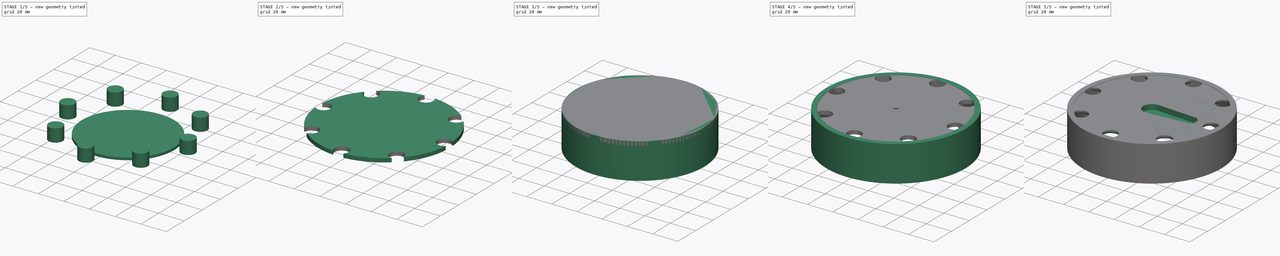
[diagram: build sequence overview — one tinted view per stage of 5, left to right]
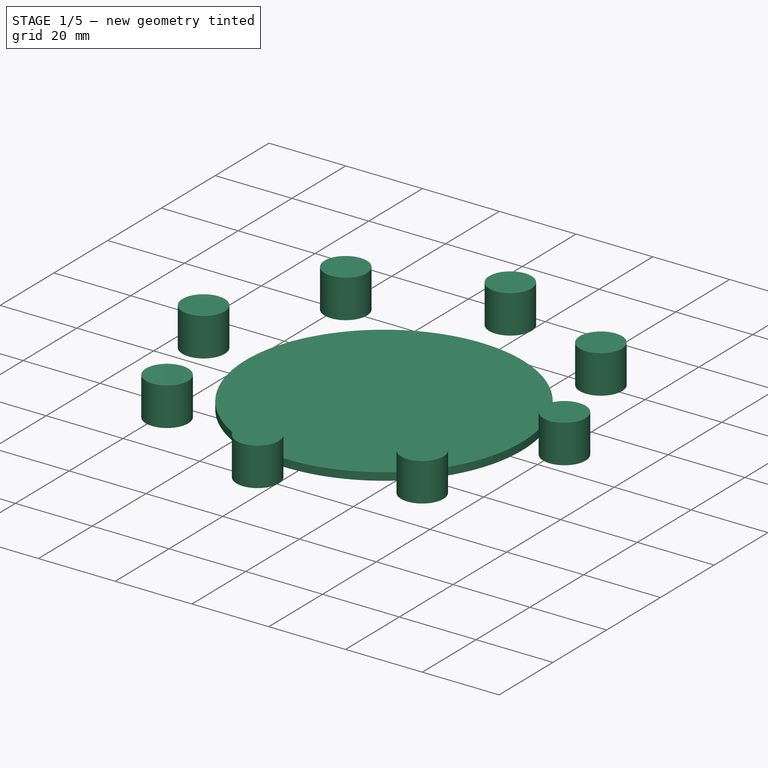
[diagram: stage 1 of 5 — iso view after this stage's code; geometry added in this stage tinted green]
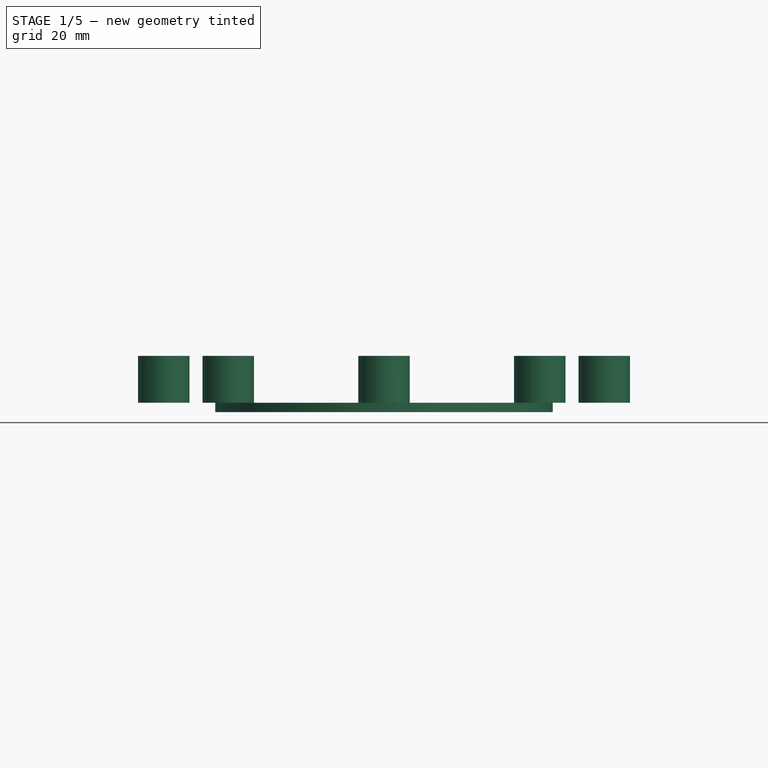
[diagram: stage 1 of 5 — front view after this stage's code; geometry added in this stage tinted green]
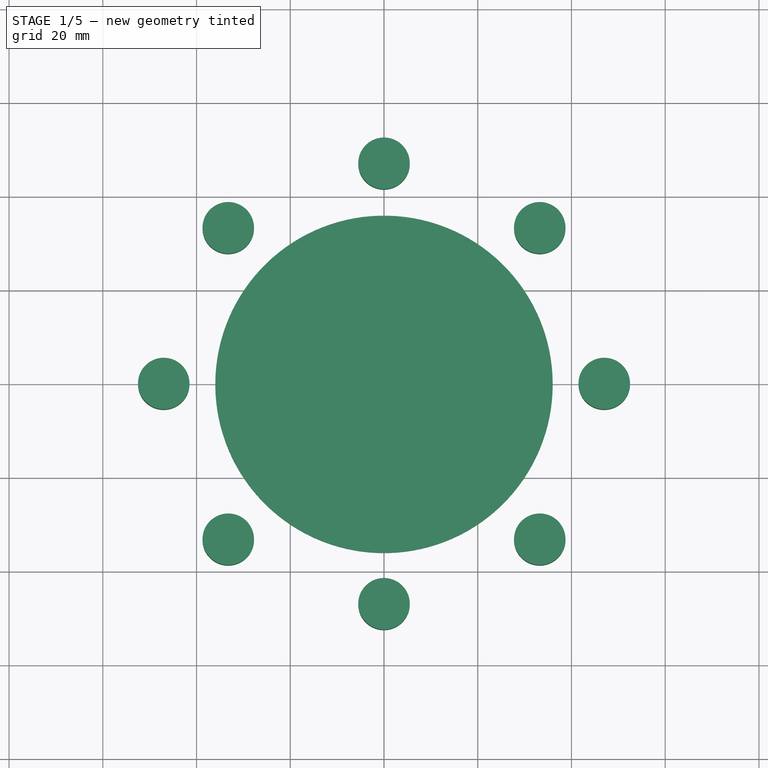
[diagram: stage 1 of 5 — top view after this stage's code; geometry added in this stage tinted green]
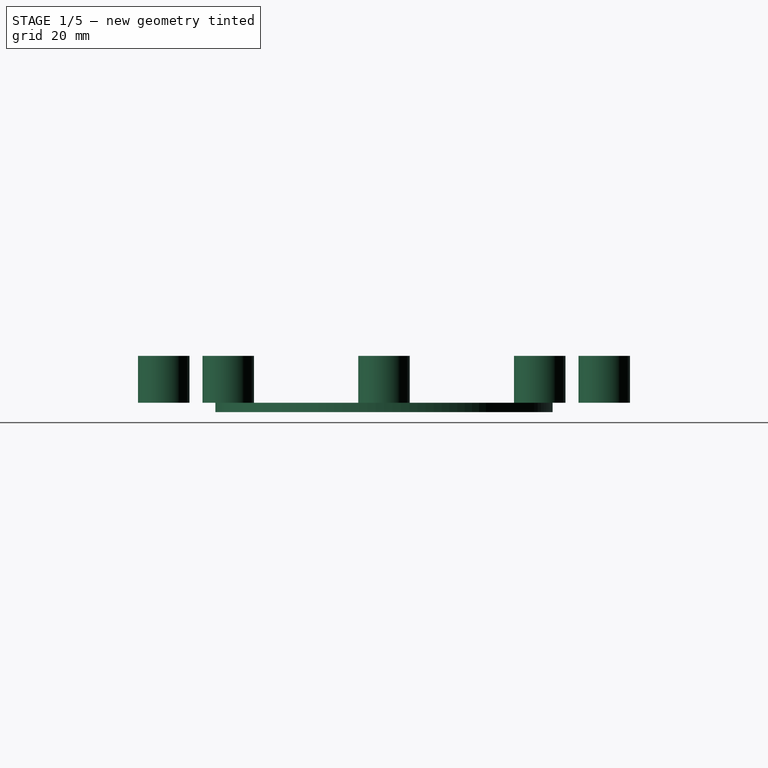
[diagram: stage 1 of 5 — right view after this stage's code; geometry added in this stage tinted green]
FCSTD DOCUMENT  (FreeCAD 0.15R4671 (Git))
Label: Pieza circular V4.2 con aro
License: All rights reserved
LicenseURL: http://en.wikipedia.org/wiki/All_rights_reserved
objects: Part::Cylinder×6, Part::Cut×3, Part::MultiFuse×2, Sketcher::SketchObject×2, Part::FeaturePython×1, PartDesign::Pocket×1, Part::Fillet×1, Part::Chamfer×1
note: 18 computed .brp shape members not serialized (recipe doc carries the construction recipe); baked Part::Feature solids carry a one-line shape summary decoded from their .brp

FEATURE [Part::Cylinder] Cylinder001  label="Agujero"
  Angle = 360
  Height = 10
  Placement = pos=(47,0,0) rot=(0,0,1;0rad)
  Radius = 5.5
FEATURE [Part::FeaturePython] Array  label="Array de agujeros"  # Draft array (typed FeaturePython)
  Angle = 360
  ArrayType = 1
  Axis = (0,0,1)
  Base = -> Cylinder001
  Center = (0,0,0)
  Fuse = false
  IntervalAxis = (0,0,0)
  IntervalX = (1,0,0)
  IntervalY = (0,1,0)
  IntervalZ = (0,0,0)
  NumberPolar = 8
  NumberX = 1
  NumberY = 1
  NumberZ = 1
FEATURE [Part::Cylinder] Cylinder004  label="Cilindro002"
  Angle = 360
  Height = 2
  Placement = pos=(0,0,-2) rot=(0,0,1;0rad)
  Radius = 36
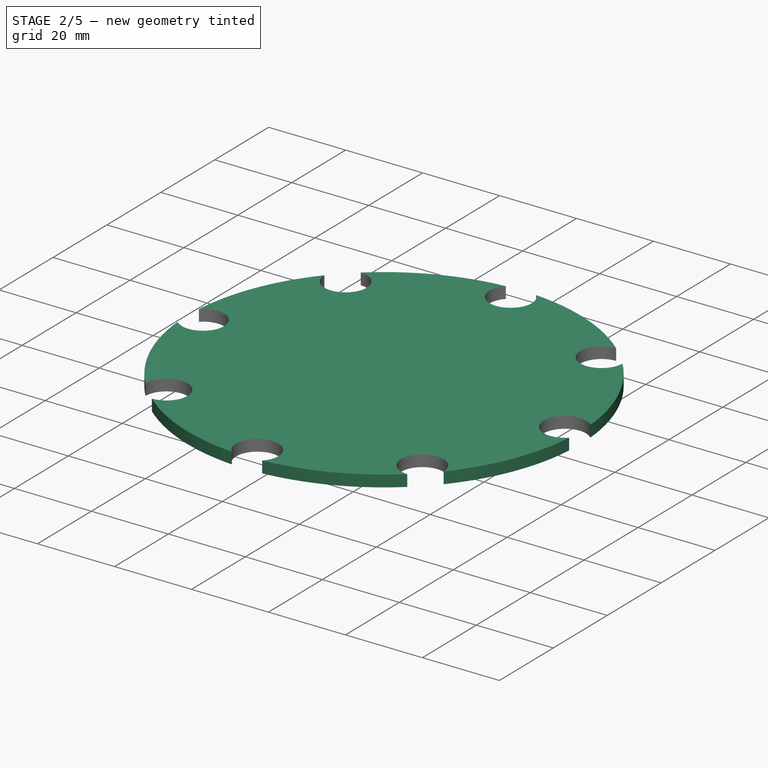
[diagram: stage 2 of 5 — iso view after this stage's code; geometry added in this stage tinted green]
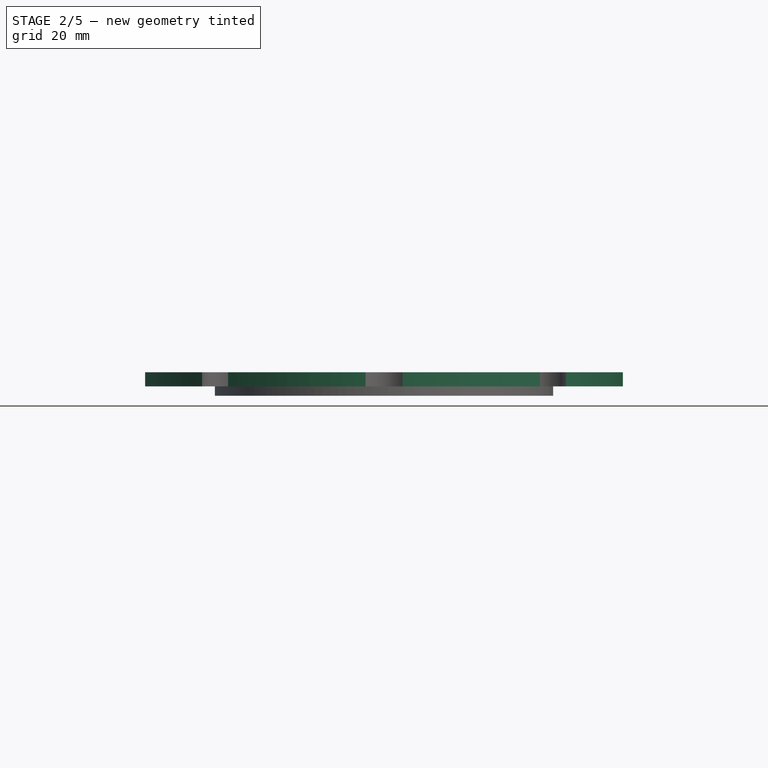
[diagram: stage 2 of 5 — front view after this stage's code; geometry added in this stage tinted green]
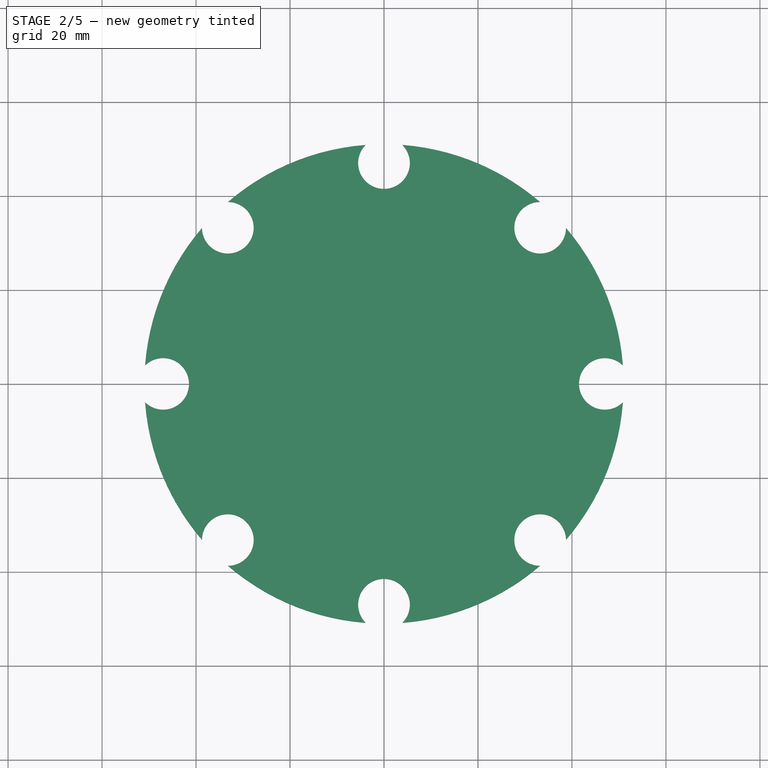
[diagram: stage 2 of 5 — top view after this stage's code; geometry added in this stage tinted green]
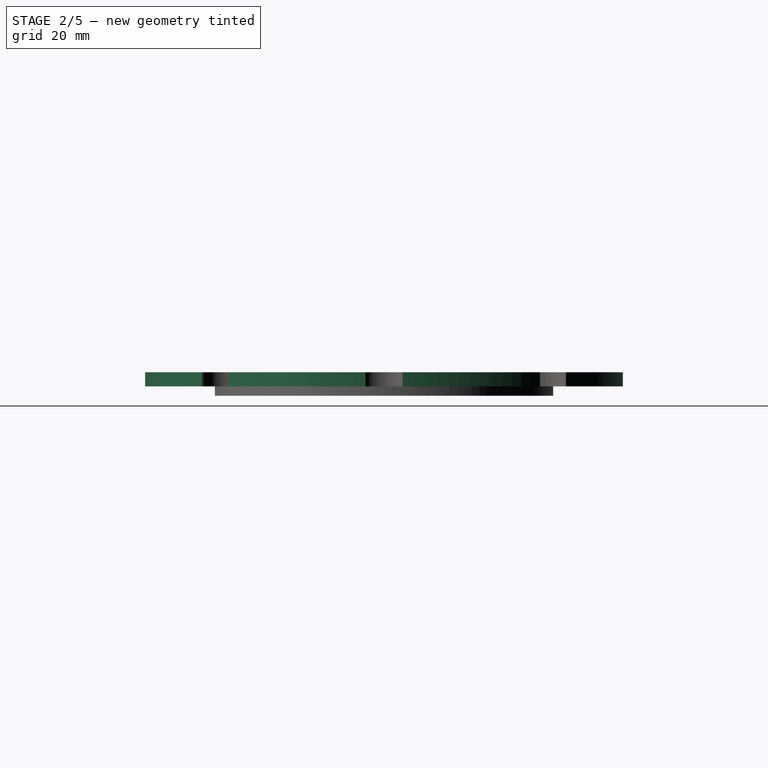
[diagram: stage 2 of 5 — right view after this stage's code; geometry added in this stage tinted green]
FEATURE [Part::Cylinder] Cylinder  label="Pieza circular"
  Angle = 360
  Height = 3
  Radius = 51
FEATURE [Part::Cut] Cut  label="Pieza agujereada"
  Base = -> Cylinder
  Tool = -> Array
FEATURE [Part::MultiFuse] Fusion
  Shapes = -> [Cut,Cylinder004]
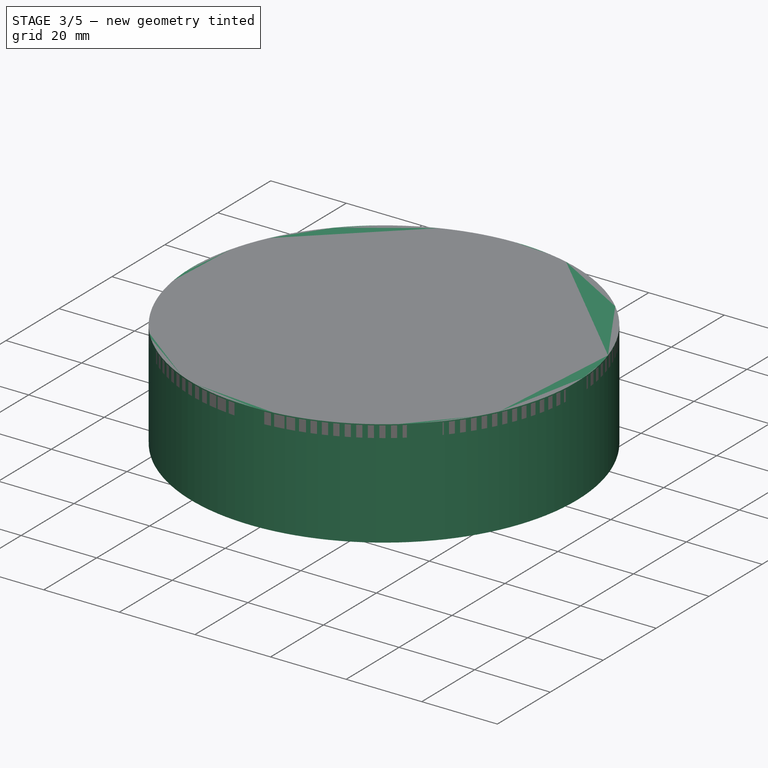
[diagram: stage 3 of 5 — iso view after this stage's code; geometry added in this stage tinted green]
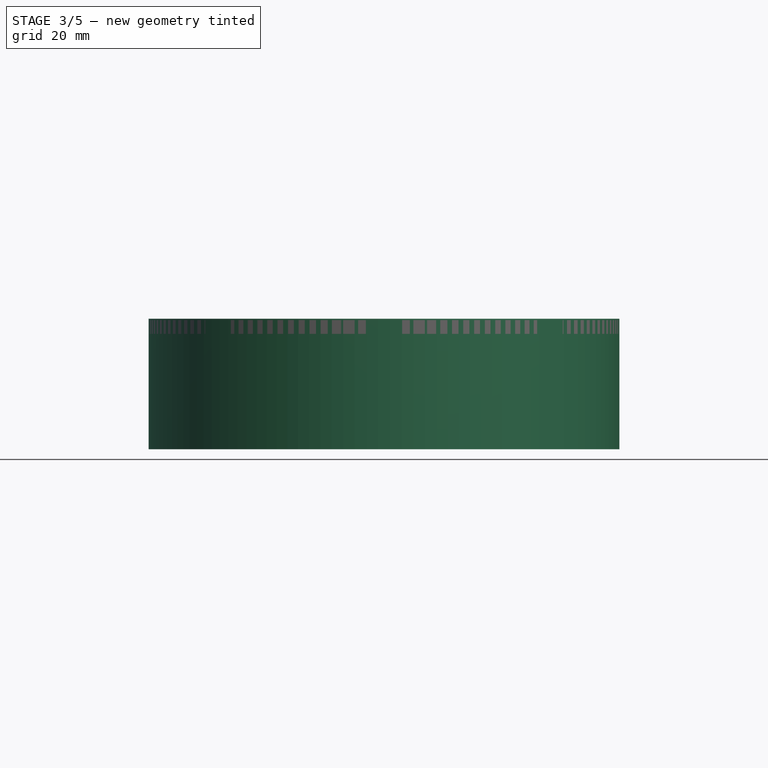
[diagram: stage 3 of 5 — front view after this stage's code; geometry added in this stage tinted green]
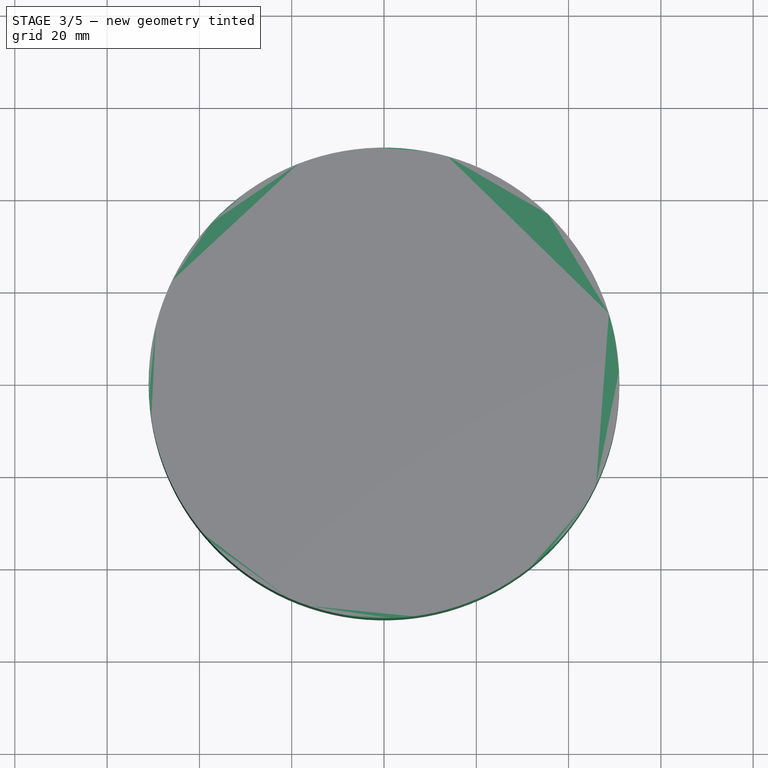
[diagram: stage 3 of 5 — top view after this stage's code; geometry added in this stage tinted green]
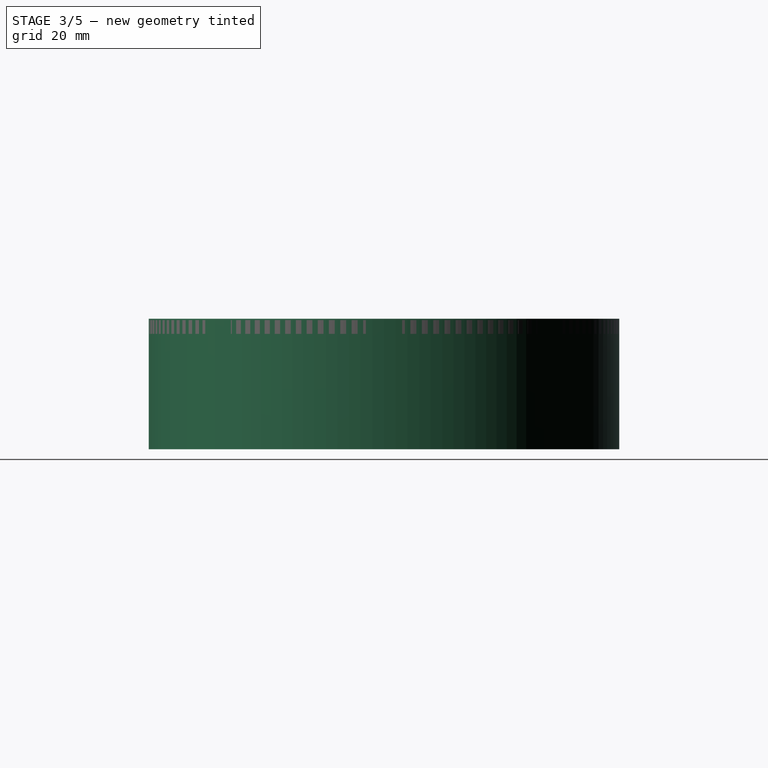
[diagram: stage 3 of 5 — right view after this stage's code; geometry added in this stage tinted green]
FEATURE [Part::Cylinder] Cylinder003  label="Cilindro001"
  Angle = 360
  Height = 28.3
  Placement = pos=(0,0,-25) rot=(0,0,1;0rad)
  Radius = 51
FEATURE [Part::Cylinder] Cylinder005  label="Cilindro003"
  Angle = 360
  Height = 11
  Placement = pos=(0,0,-6) rot=(0,0,1;0rad)
  Radius = 1.75
FEATURE [Part::Cut] Cut002
  Base = -> Fusion
  Tool = -> Cylinder005
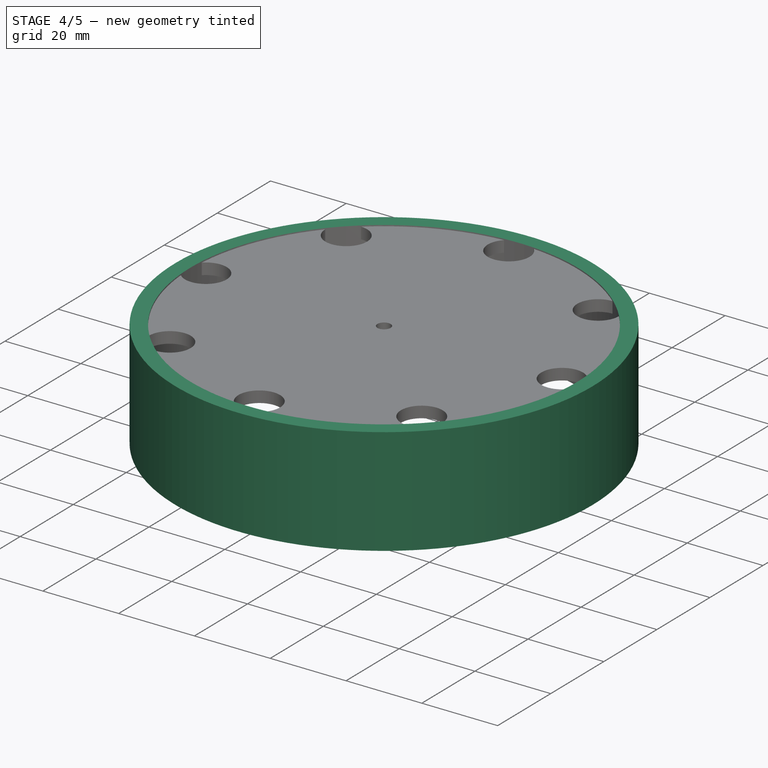
[diagram: stage 4 of 5 — iso view after this stage's code; geometry added in this stage tinted green]
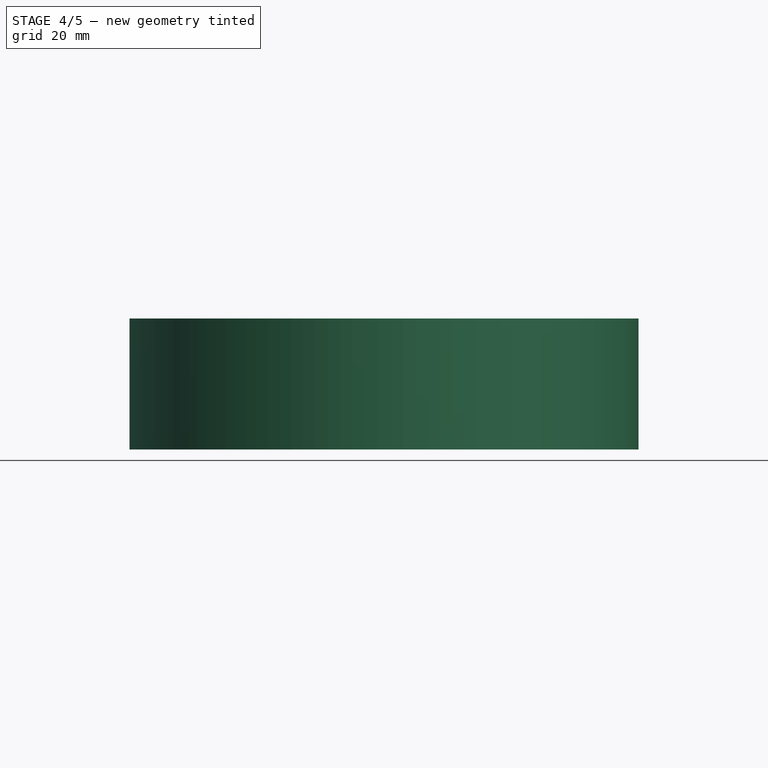
[diagram: stage 4 of 5 — front view after this stage's code; geometry added in this stage tinted green]
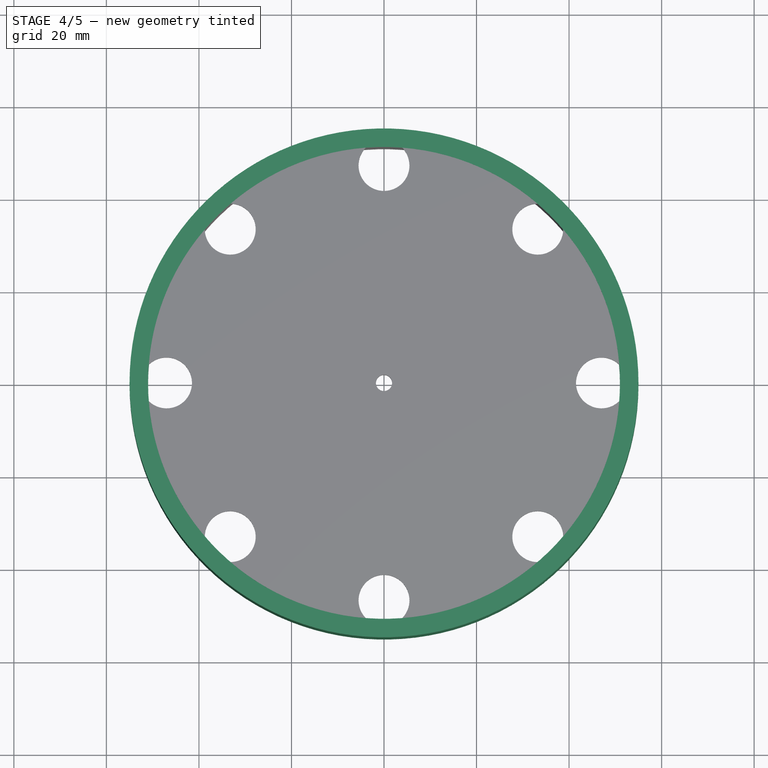
[diagram: stage 4 of 5 — top view after this stage's code; geometry added in this stage tinted green]
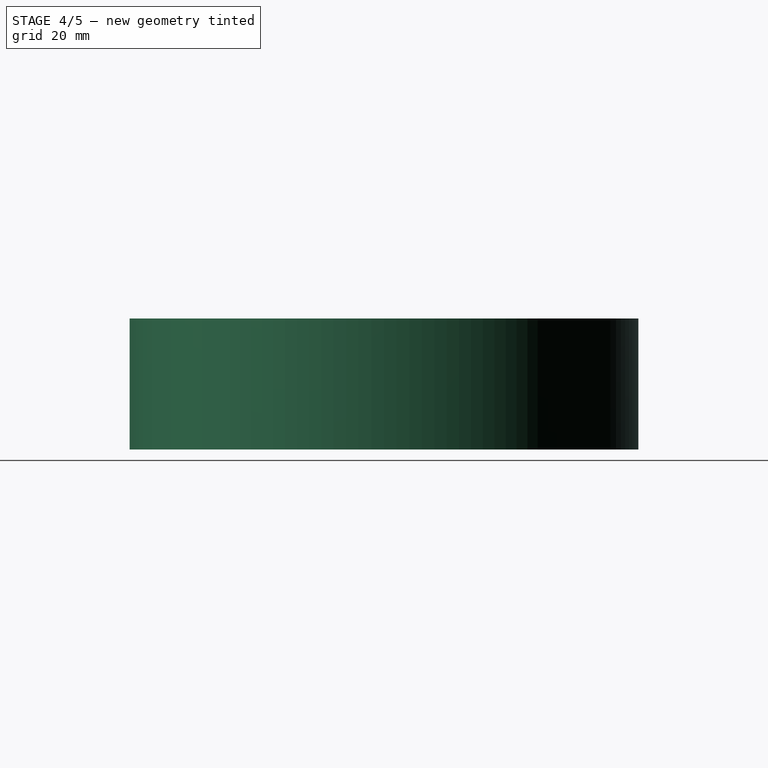
[diagram: stage 4 of 5 — right view after this stage's code; geometry added in this stage tinted green]
FEATURE [Part::Cylinder] Cylinder002  label="Cilindro"
  Angle = 360
  Height = 28.3
  Placement = pos=(0,0,-25) rot=(0,0,1;0rad)
  Radius = 55
FEATURE [Part::Cut] Cut001
  Base = -> Cylinder002
  Tool = -> Cylinder003
FEATURE [Part::MultiFuse] Fusion001
  Shapes = -> [Cut002,Cut001]
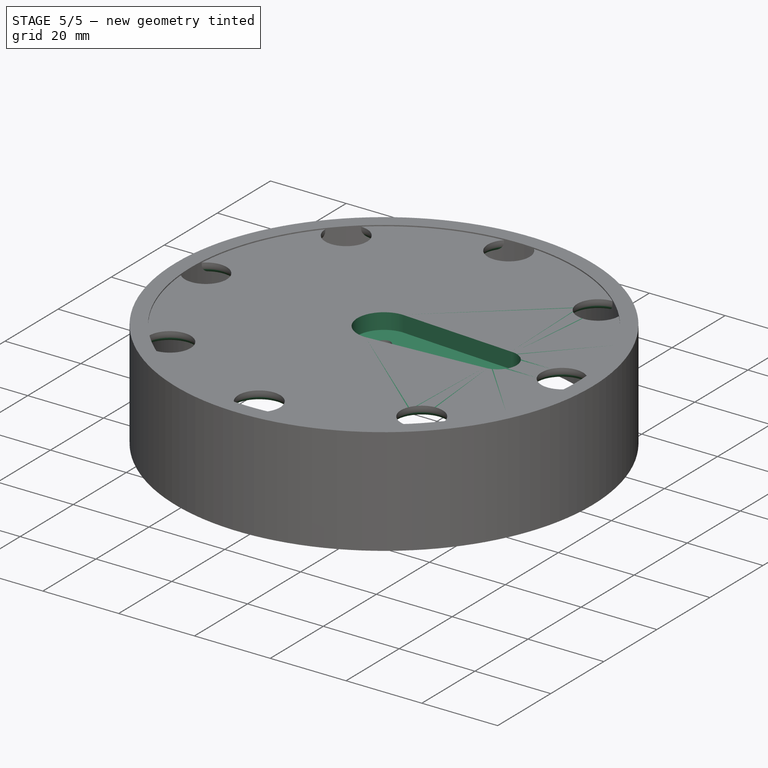
[diagram: stage 5 of 5 — iso view after this stage's code; geometry added in this stage tinted green]
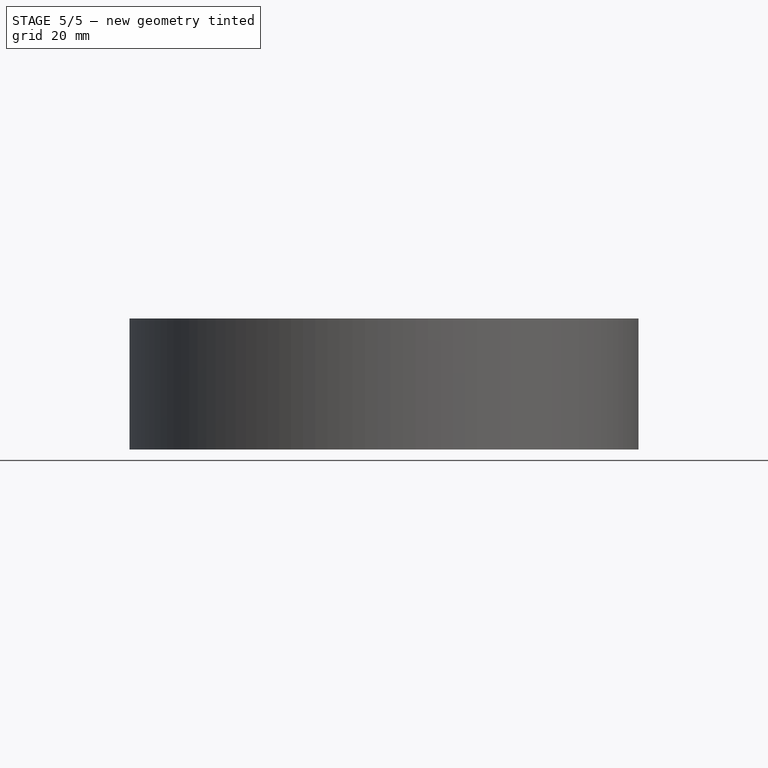
[diagram: stage 5 of 5 — front view after this stage's code; geometry added in this stage tinted green]
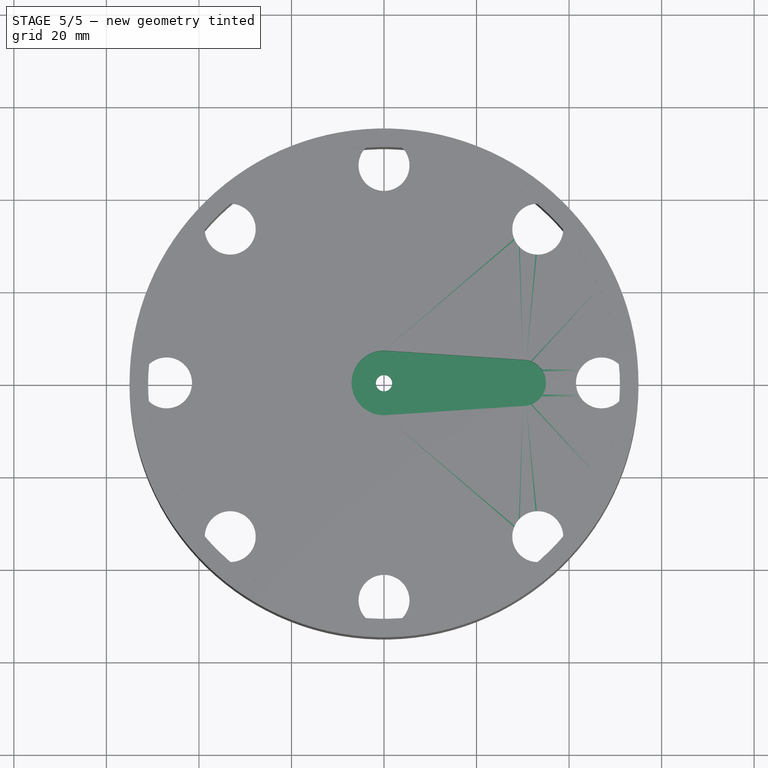
[diagram: stage 5 of 5 — top view after this stage's code; geometry added in this stage tinted green]
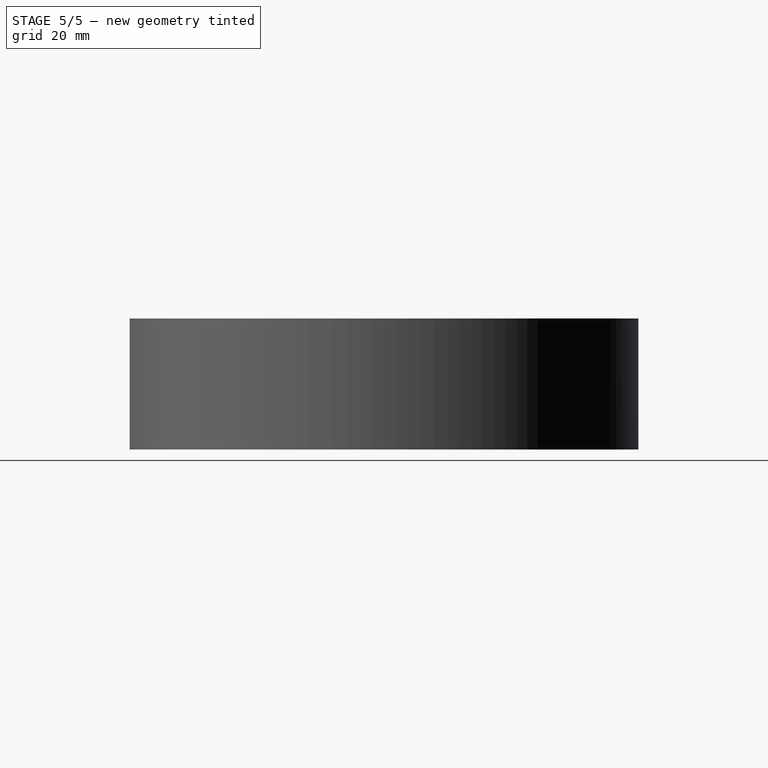
[diagram: stage 5 of 5 — right view after this stage's code; geometry added in this stage tinted green]
FEATURE [Sketcher::SketchObject] Sketch001  label="Hueco para la pieza del servo"
  Placement = pos=(0,0,3.3) rot=(0,0,1;0rad)
  Support = -> Cut [Face2]
  sketch-geometry (4):
    g0: ArcOfCircle CenterX=30 CenterY=0 CenterZ=0 NormalX=0 NormalY=0 NormalZ=1 Radius=5 StartAngle=4.71239 EndAngle=7.85398
    g1: LineSegment StartX=-1e-12 StartY=7 StartZ=0 EndX=30 EndY=5 EndZ=0
    g2: LineSegment StartX=2e-12 StartY=-7 StartZ=0 EndX=30 EndY=-5 EndZ=0
    g3: ArcOfCircle CenterX=0 CenterY=0 CenterZ=0 NormalX=0 NormalY=0 NormalZ=1 Radius=7 StartAngle=1.5708 EndAngle=4.71239
  constraints (13):
    c: Radius(g0) = 5
    c: DistanceY(g-1,g0) = 0
    c: Coincident(g0,g2)
    c: Coincident(g0,g1)
    c: Coincident(g3,g-1)
    c: Coincident(g3,g1)
    c: Coincident(g3,g2)
    c: Radius(g3) = 7
    c: DistanceX(g1) = 0
    c: DistanceX(g2) = 0
    c: DistanceX(g0) = 30
    c: DistanceX(g0) = 30
    c: DistanceX(g0) = 30
FEATURE [Sketcher::SketchObject] Sketch
  Placement = pos=(0,0,3) rot=(0,0,1;0rad)
  Support = -> Fusion001 [Face5]
  sketch-geometry (4):
    g0: ArcOfCircle CenterX=30 CenterY=0 CenterZ=0 NormalX=0 NormalY=0 NormalZ=1 Radius=5 StartAngle=4.71239 EndAngle=7.85398
    g1: LineSegment StartX=0 StartY=7 StartZ=0 EndX=30 EndY=5 EndZ=0
    g2: LineSegment StartX=0 StartY=-7 StartZ=0 EndX=30 EndY=-5 EndZ=0
    g3: ArcOfCircle CenterX=0 CenterY=0 CenterZ=0 NormalX=0 NormalY=0 NormalZ=1 Radius=7 StartAngle=1.5708 EndAngle=4.71239
  constraints (13):
    c: Radius(g0) = 5
    c: DistanceX(g0) = 30
    c: DistanceY(g0) = 0
    c: Coincident(g0,g2)
    c: Coincident(g0,g1)
    c: Coincident(g3,g-1)
    c: Coincident(g3,g1)
    c: Coincident(g3,g2)
    c: Radius(g3) = 7
    c: DistanceX(g1) = 0
    c: DistanceX(g2) = 0
    c: DistanceX(g0) = 30
    c: DistanceX(g0) = 30
FEATURE [PartDesign::Pocket] Pocket
  Length = 4.2
  Sketch = -> Sketch
  Type = 0
FEATURE [Part::Fillet] Fillet
  Base = -> Pocket
  Edges = 8 edges r=2.5: [Edge7,Edge10,Edge11,Edge14,Edge15,Edge18,Edge19,Edge22]
FEATURE [Part::Chamfer] Chamfer
  Base = -> Fillet
  Edges = 1 edges r=1.99: [Edge70]
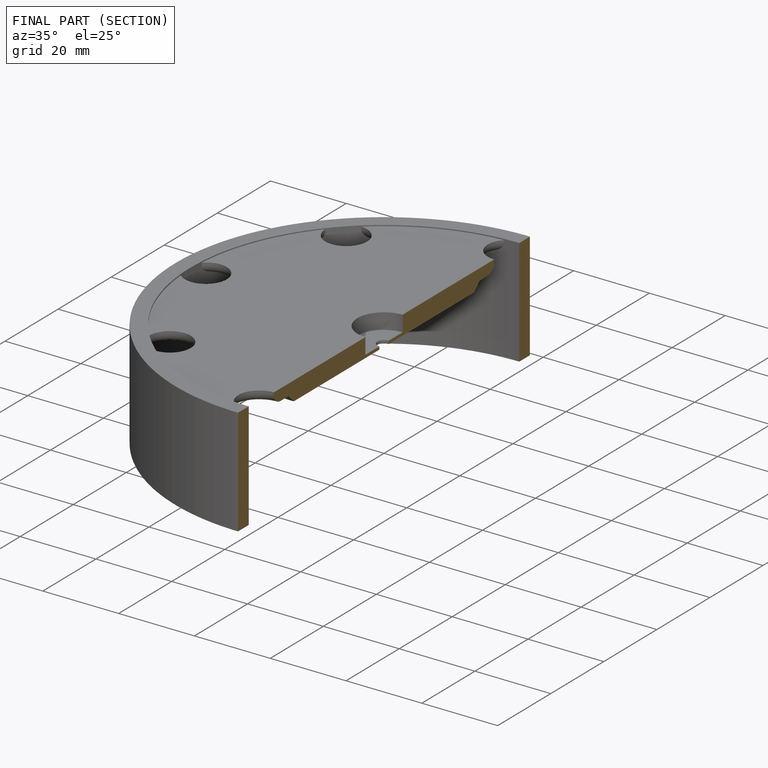
[diagram: finished part — half-section view (interior)]
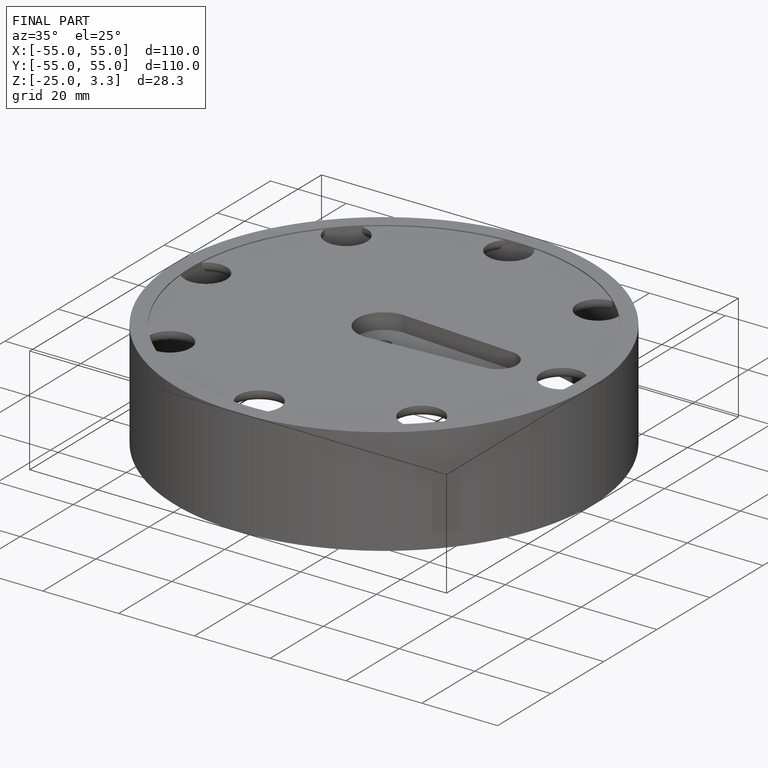
[diagram: finished part — iso view with bounding-box wireframe]
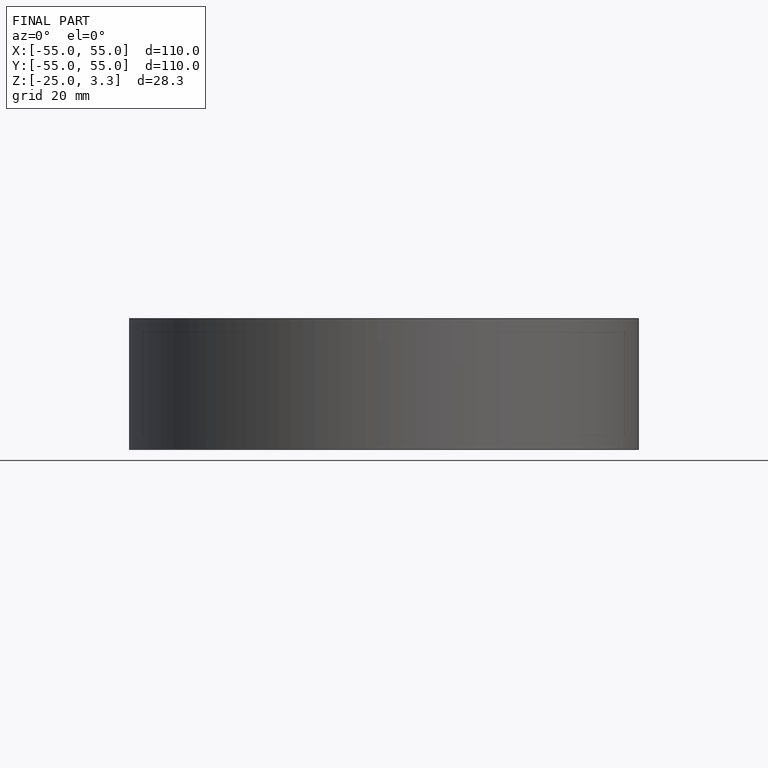
[diagram: finished part — front view with bounding-box wireframe]
